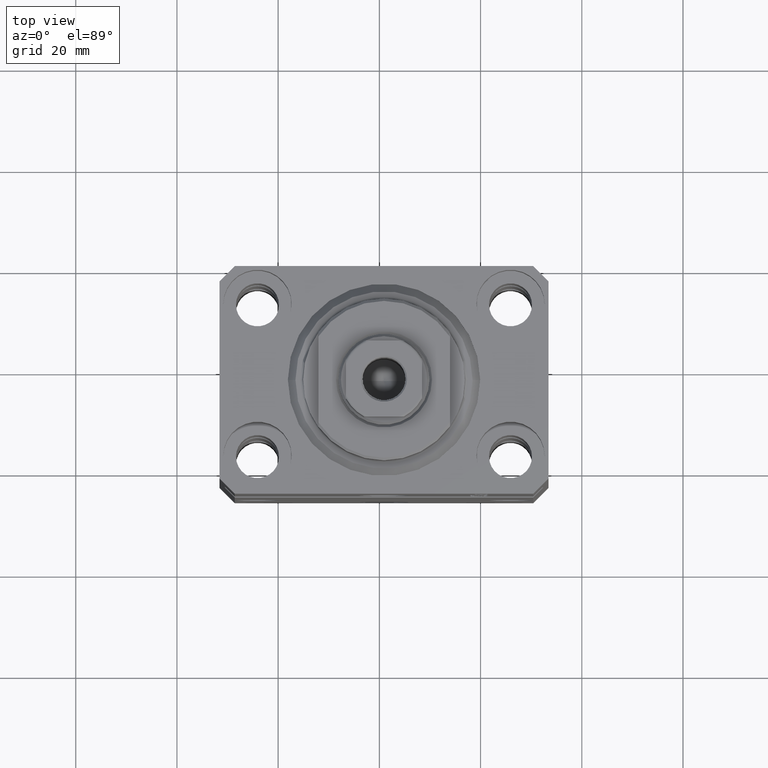
[diagram: clean part render]
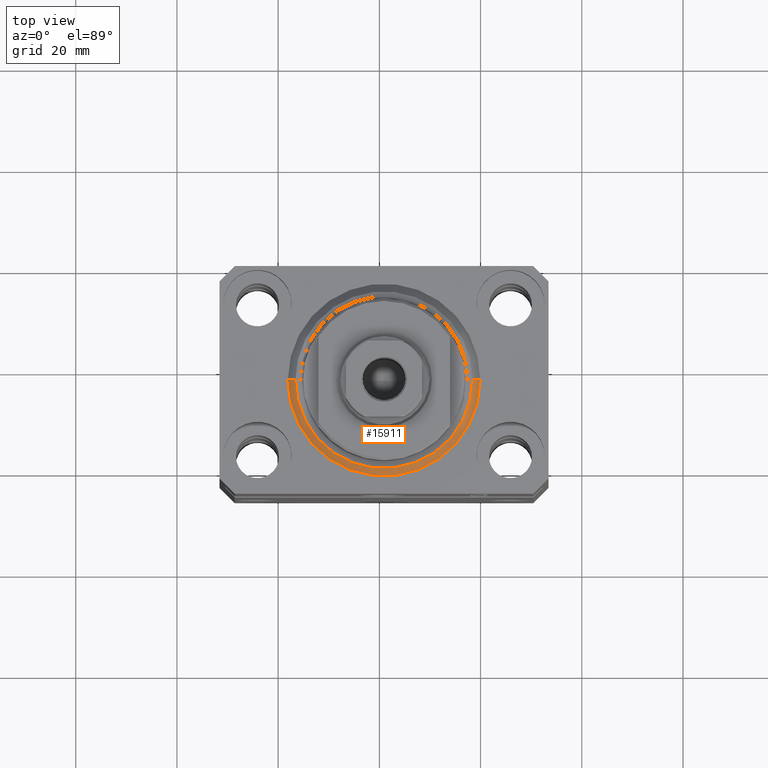
[diagram: same view with one face highlighted and labeled with its STEP entity id]
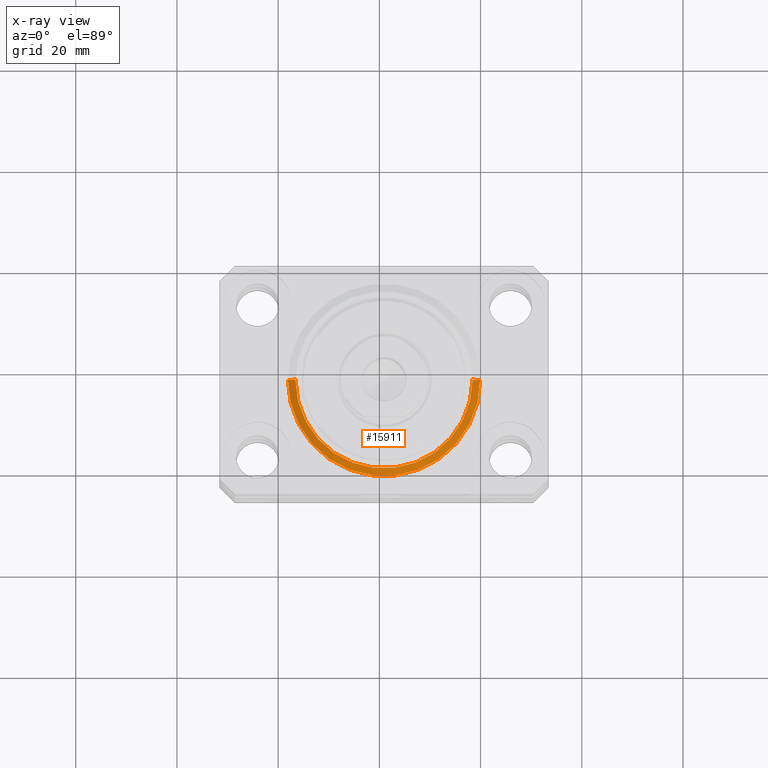
[diagram: x-ray of the same camera — body ghosted, the highlighted face saturated]
A machine part, top view. The second image highlights one B-rep face of the part: STEP entity #15911.
The next image is the same camera in x-ray: the body ghosted, the highlighted face saturated — about 0% of this face is hidden behind the body in this view.
In plain terms, the highlighted conical surface has half-angle 45 deg.
Its self-contained STEP definition (entity closure, byte-faithful):
#2 = CARTESIAN_POINT ( 'NONE',  ( 17.49999999999999289, 0.000000000000000000, 0.000000000000000000 ) ) ;
#294 = EDGE_LOOP ( 'NONE', ( #16621, #31312, #3394, #6023 ) ) ;
#647 = EDGE_CURVE ( 'NONE', #17272, #16748, #1404, .T. ) ;
#1404 = LINE ( 'NONE', #29016, #6930 ) ;
#1795 = DIRECTION ( 'NONE',  ( -0.000000000000000000, -0.000000000000000000, 1.000000000000000000 ) ) ;
#3063 = CARTESIAN_POINT ( 'NONE',  ( -19.00000000000000000, 2.326828918379970970E-15, 1.500000000000004885 ) ) ;
#3179 = CARTESIAN_POINT ( 'NONE',  ( 19.00000000000000000, 2.326828918379970970E-15, 1.500000000000004885 ) ) ;
#3394 = ORIENTED_EDGE ( 'NONE', *, *, #647, .T. ) ;
#4315 = AXIS2_PLACEMENT_3D ( 'NONE', #44254, #37127, #5853 ) ;
#5853 = DIRECTION ( 'NONE',  ( 1.000000000000000000, 0.000000000000000000, 0.000000000000000000 ) ) ;
#6023 = ORIENTED_EDGE ( 'NONE', *, *, #9822, .F. ) ;
#6501 = LINE ( 'NONE', #3063, #44087 ) ;
#6930 = VECTOR ( 'NONE', #22118, 1000.000000000000000 ) ;
#7205 = CARTESIAN_POINT ( 'NONE',  ( -17.49999999999999289, 2.234980408443919215E-15, 0.000000000000000000 ) ) ;
#8558 = CIRCLE ( 'NONE', #38687, 19.00000000000000000 ) ;
#9822 = EDGE_CURVE ( 'NONE', #24797, #16748, #8558, .T. ) ;
#14279 = EDGE_CURVE ( 'NONE', #17272, #43387, #35128, .T. ) ;
#15911 = ADVANCED_FACE ( 'NONE', ( #43107 ), #45445, .T. ) ;
#16621 = ORIENTED_EDGE ( 'NONE', *, *, #39432, .F. ) ;
#16748 = VERTEX_POINT ( 'NONE', #3179 ) ;
#17101 = DIRECTION ( 'NONE',  ( -0.7071067811865483499, 8.659560562354943952E-17, 0.7071067811865467956 ) ) ;
#17272 = VERTEX_POINT ( 'NONE', #2 ) ;
#18968 = CARTESIAN_POINT ( 'NONE',  ( 0.000000000000000000, 0.000000000000000000, 1.500000000000004885 ) ) ;
#21974 = DIRECTION ( 'NONE',  ( -0.000000000000000000, -0.000000000000000000, 1.000000000000000000 ) ) ;
#22118 = DIRECTION ( 'NONE',  ( 0.7071067811865483499, 0.000000000000000000, 0.7071067811865467956 ) ) ;
#24797 = VERTEX_POINT ( 'NONE', #42523 ) ;
#25644 = AXIS2_PLACEMENT_3D ( 'NONE', #18968, #21974, #32543 ) ;
#28750 = DIRECTION ( 'NONE',  ( 1.000000000000000000, 0.000000000000000000, 0.000000000000000000 ) ) ;
#28969 = CARTESIAN_POINT ( 'NONE',  ( 0.000000000000000000, 0.000000000000000000, 1.500000000000004885 ) ) ;
#29016 = CARTESIAN_POINT ( 'NONE',  ( 19.00000000000000000, 0.000000000000000000, 1.500000000000004885 ) ) ;
#31312 = ORIENTED_EDGE ( 'NONE', *, *, #14279, .F. ) ;
#32543 = DIRECTION ( 'NONE',  ( 1.000000000000000000, 0.000000000000000000, 0.000000000000000000 ) ) ;
#35128 = CIRCLE ( 'NONE', #4315, 17.49999999999999289 ) ;
#37127 = DIRECTION ( 'NONE',  ( -0.000000000000000000, -0.000000000000000000, -1.000000000000000000 ) ) ;
#38687 = AXIS2_PLACEMENT_3D ( 'NONE', #28969, #1795, #28750 ) ;
#39432 = EDGE_CURVE ( 'NONE', #43387, #24797, #6501, .T. ) ;
#42523 = CARTESIAN_POINT ( 'NONE',  ( -19.00000000000000000, 0.000000000000000000, 1.500000000000004885 ) ) ;
#43107 = FACE_OUTER_BOUND ( 'NONE', #294, .T. ) ;
#43387 = VERTEX_POINT ( 'NONE', #7205 ) ;
#44087 = VECTOR ( 'NONE', #17101, 1000.000000000000000 ) ;
#44254 = CARTESIAN_POINT ( 'NONE',  ( 0.000000000000000000, 0.000000000000000000, 0.000000000000000000 ) ) ;
#45445 = CONICAL_SURFACE ( 'NONE', #25644, 19.00000000000000000, 0.7853981633974492782 ) ;